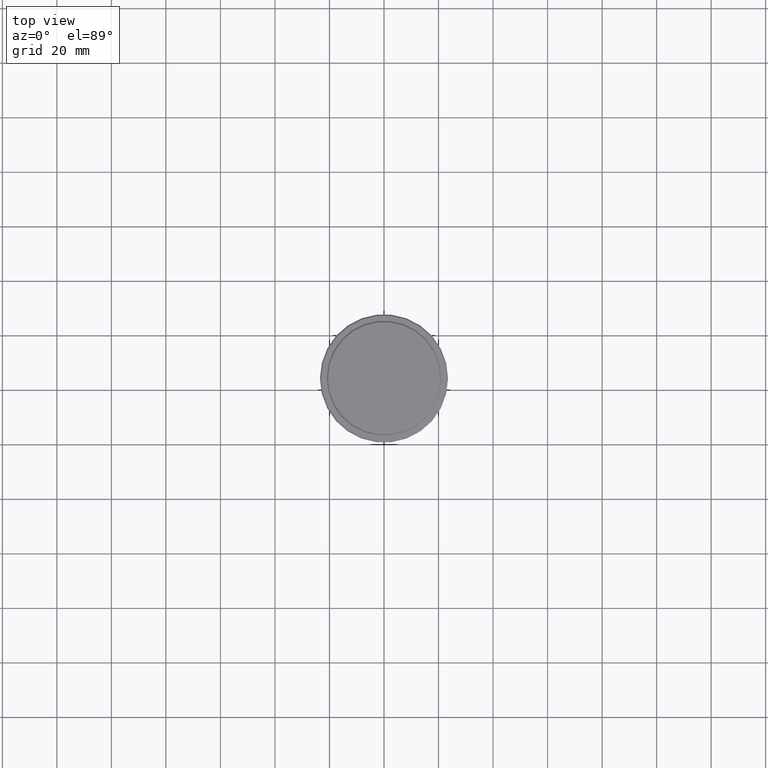
[diagram: clean part render]
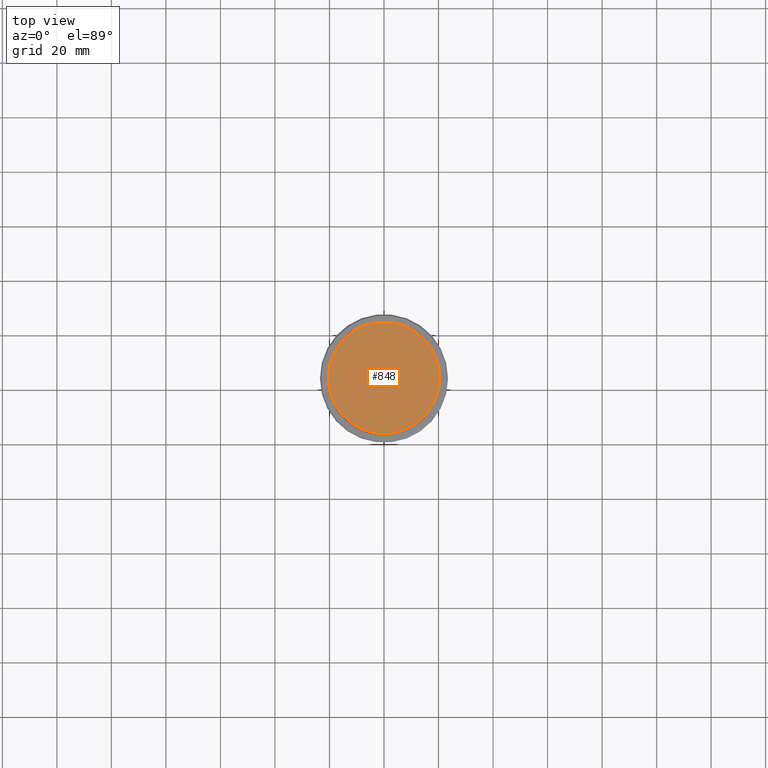
[diagram: same view with one face highlighted and labeled with its STEP entity id]
A machine part, top view. The second image highlights one B-rep face of the part: STEP entity #848.
In plain terms, the highlighted planar face has unit normal (0, -0, 1).
Its self-contained STEP definition (entity closure, byte-faithful):
#36 = DIRECTION ( 'NONE',  ( 1.000000000000000000, 0.000000000000000000, 0.000000000000000000 ) ) ;
#155 = VERTEX_POINT ( 'NONE', #774 ) ;
#256 = ORIENTED_EDGE ( 'NONE', *, *, #1222, .T. ) ;
#374 = AXIS2_PLACEMENT_3D ( 'NONE', #1117, #931, #36 ) ;
#408 = CARTESIAN_POINT ( 'NONE',  ( 0.000000000000000000, 0.000000000000000000, 0.000000000000000000 ) ) ;
#498 = EDGE_LOOP ( 'NONE', ( #1113, #256 ) ) ;
#518 = CIRCLE ( 'NONE', #1353, 20.50000000000007461 ) ;
#624 = CIRCLE ( 'NONE', #374, 20.50000000000007461 ) ;
#728 = FACE_OUTER_BOUND ( 'NONE', #498, .T. ) ;
#774 = CARTESIAN_POINT ( 'NONE',  ( -20.50000000000007461, 0.000000000000000000, 0.000000000000000000 ) ) ;
#780 = DIRECTION ( 'NONE',  ( -0.000000000000000000, -0.000000000000000000, 1.000000000000000000 ) ) ;
#825 = CARTESIAN_POINT ( 'NONE',  ( 20.50000000000007461, 2.541142108230762213E-15, 0.000000000000000000 ) ) ;
#848 = ADVANCED_FACE ( 'NONE', ( #728 ), #1272, .T. ) ;
#852 = DIRECTION ( 'NONE',  ( 1.000000000000000000, 0.000000000000000000, 0.000000000000000000 ) ) ;
#931 = DIRECTION ( 'NONE',  ( -0.000000000000000000, -0.000000000000000000, 1.000000000000000000 ) ) ;
#951 = DIRECTION ( 'NONE',  ( 0.000000000000000000, -0.000000000000000000, 1.000000000000000000 ) ) ;
#1089 = EDGE_CURVE ( 'NONE', #155, #1232, #518, .T. ) ;
#1113 = ORIENTED_EDGE ( 'NONE', *, *, #1089, .T. ) ;
#1117 = CARTESIAN_POINT ( 'NONE',  ( 0.000000000000000000, 0.000000000000000000, 0.000000000000000000 ) ) ;
#1195 = AXIS2_PLACEMENT_3D ( 'NONE', #408, #951, #852 ) ;
#1209 = DIRECTION ( 'NONE',  ( 1.000000000000000000, 0.000000000000000000, 0.000000000000000000 ) ) ;
#1222 = EDGE_CURVE ( 'NONE', #1232, #155, #624, .T. ) ;
#1232 = VERTEX_POINT ( 'NONE', #825 ) ;
#1272 = PLANE ( 'NONE',  #1195 ) ;
#1314 = CARTESIAN_POINT ( 'NONE',  ( 0.000000000000000000, 0.000000000000000000, 0.000000000000000000 ) ) ;
#1353 = AXIS2_PLACEMENT_3D ( 'NONE', #1314, #780, #1209 ) ;